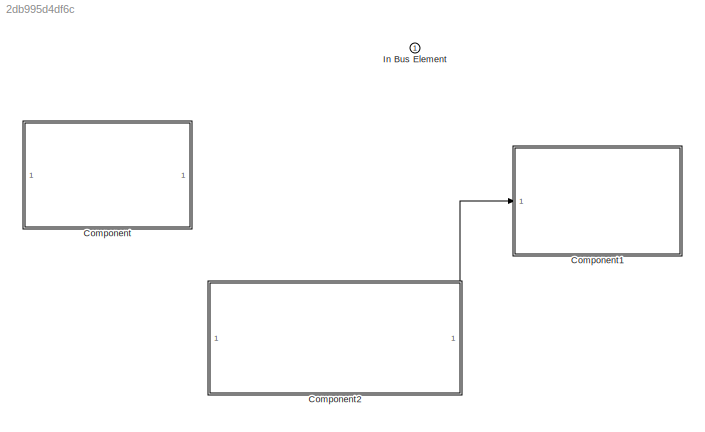
MODEL slx_2db995d4df6c
KIND model
CONFIG AbsTol = auto
CONFIG EnableMultiTasking = off
CONFIG FixedStep = auto
CONFIG MaxStep = auto
CONFIG MinStep = auto
CONFIG RelTol = 1e-3
CONFIG SampleTimeConstraint = Unconstrained
CONFIG SolverName = VariableStepAuto
CONFIG StartTime = 0.0
CONFIG StopTime = 10.0
BLOCK [ModelReference] Component
  ModelNameDialog = testbehavior
  ModelReferenceVersion = 1.1
  PortSchema = {"entries":[{"content":{"headerSize":38,"margin":15,"minimumSpacing":25,"sides":[{"content":{"connectorIds":["In1"]},"type":"ConnectorPlacement.EquallySpacedRectSide","uuid":"b3fe0fa1-97c7-42e0-841a-79ae63f02a33"},{"content":{"connectorIds":["Out1"],"side":"RIGHT"},"type":"ConnectorPlacement.EquallySpacedRectSide","uuid":"f42211fa-d4b6-4ac3-8cc7-d9d3cb298ed0"},{"content":{"connectorIds":[],"side":...<+288ch>
  Ports = [1, 1]
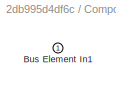
BLOCK [SubSystem] Component1
  PortSchema = {"entries":[{"content":{"headerSize":26,"margin":15,"minimumSpacing":25,"sides":[{"content":{"connectorIds":["In1"]},"type":"ConnectorPlacement.EquallySpacedRectSide","uuid":"b3fe0fa1-97c7-42e0-841a-79ae63f02a33"},{"content":{"connectorIds":[],"side":"RIGHT"},"type":"ConnectorPlacement.EquallySpacedRectSide","uuid":"f42211fa-d4b6-4ac3-8cc7-d9d3cb298ed0"},{"content":{"connectorIds":[],"side":"TOP"}...<+282ch>
  Ports = [1]
  RequestExecContextInheritance = off
BLOCK [Inport] Component1/Bus Element In1
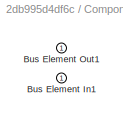
BLOCK [SubSystem] Component2
  PortSchema = {"entries":[{"content":{"headerSize":26,"margin":15,"minimumSpacing":25,"sides":[{"content":{"connectorIds":[]},"type":"ConnectorPlacement.EquallySpacedRectSide","uuid":"b3fe0fa1-97c7-42e0-841a-79ae63f02a33"},{"content":{"connectorIds":[],"side":"RIGHT"},"type":"ConnectorPlacement.EquallySpacedRectSide","uuid":"f42211fa-d4b6-4ac3-8cc7-d9d3cb298ed0"},{"content":{"connectorIds":["In1","Out1"],"side"...<+289ch>
  Ports = [1, 1]
  RequestExecContextInheritance = off
BLOCK [Inport] Component2/Bus Element In1
BLOCK [Outport] Component2/Bus Element Out1
BLOCK [Inport] In Bus Element
LINE Component2:1 -> Component1:1
